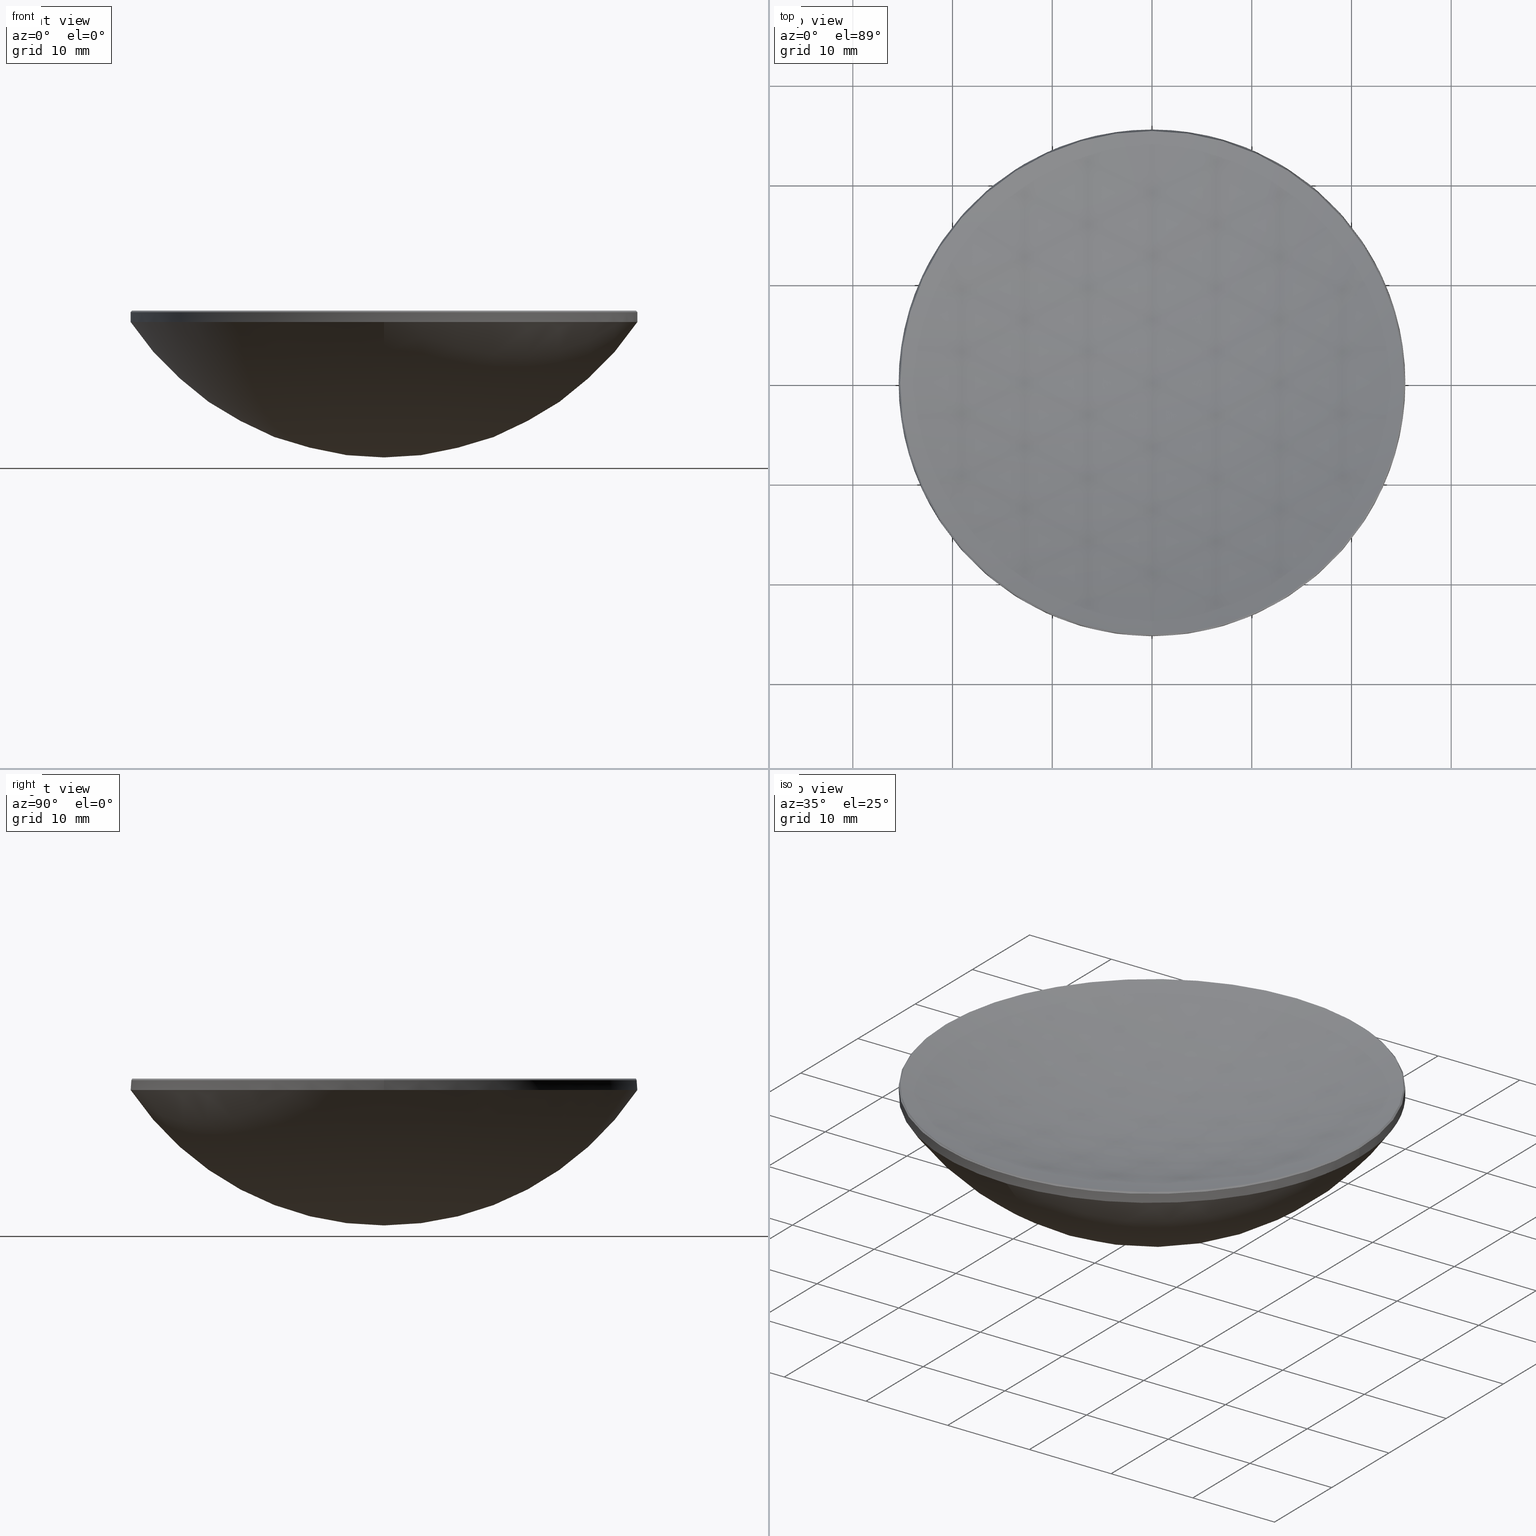
[diagram: canonical four-view strip — front | top / right | iso, engineering-drawing reading convention]
A machine part, canonical four-view strip (front | top / right | iso — engineering-drawing reading convention). The complete STEP part file that produces these views, byte-faithful:
ISO-10303-21;
HEADER;
FILE_DESCRIPTION (( 'STEP AP214' ),
    '1' );
FILE_NAME ('GLM2-050B-100.STEP',
    '2024-08-09T02:49:49',
    ( 'Windows User' ),
    ( 'P R C' ),
    'SwSTEP 2.0',
    'SolidWorks 2022',
    '' );
FILE_SCHEMA (( 'AUTOMOTIVE_DESIGN' ));
ENDSEC;

DATA;
#1 = CARTESIAN_POINT ( 'NONE',  ( 0.000000000000000000, 0.000000000000000000, 16.15044116531087681 ) ) ;
#2 = SURFACE_STYLE_USAGE ( .BOTH. , #201 ) ;
#3 = DIRECTION ( 'NONE',  ( -1.000000000000000000, 0.000000000000000000, 0.000000000000000000 ) ) ;
#4 = VECTOR ( 'NONE', #52, 999.9999999999998863 ) ;
#5 = FACE_OUTER_BOUND ( 'NONE', #82, .T. ) ;
#6 = SURFACE_STYLE_FILL_AREA ( #72 ) ;
#7 = ADVANCED_FACE ( 'NONE', ( #5 ), #224, .T. ) ;
#8 = EDGE_CURVE ( 'NONE', #102, #253, #270, .T. ) ;
#9 = ORIENTED_EDGE ( 'NONE', *, *, #100, .F. ) ;
#10 = AXIS2_PLACEMENT_3D ( 'NONE', #73, #66, #273 ) ;
#11 = DIRECTION ( 'NONE',  ( 0.7071067811864824026, 8.659560562354135369E-17, -0.7071067811866127428 ) ) ;
#12 = AXIS2_PLACEMENT_3D ( 'NONE', #30, #91, #246 ) ;
#13 = CARTESIAN_POINT ( 'NONE',  ( 0.000000000000000000, 0.000000000000000000, 93.05130838183561082 ) ) ;
#14 = UNCERTAINTY_MEASURE_WITH_UNIT (LENGTH_MEASURE( 1.000000000000000082E-05 ), #65, 'distance_accuracy_value', 'NONE');
#15 = AXIS2_PLACEMENT_3D ( 'NONE', #173, #119, #70 ) ;
#16 = UNCERTAINTY_MEASURE_WITH_UNIT (LENGTH_MEASURE( 1.000000000000000082E-05 ), #157, 'distance_accuracy_value', 'NONE');
#17 = ORIENTED_EDGE ( 'NONE', *, *, #8, .F. ) ;
#18 = EDGE_CURVE ( 'NONE', #126, #280, #57, .T. ) ;
#19 = CIRCLE ( 'NONE', #39, 30.55000000000000071 ) ;
#20 = VERTEX_POINT ( 'NONE', #47 ) ;
#21 = ORIENTED_EDGE ( 'NONE', *, *, #257, .T. ) ;
#22 = DIRECTION ( 'NONE',  ( 0.000000000000000000, 1.000000000000000000, 0.000000000000000000 ) ) ;
#23 =( GEOMETRIC_REPRESENTATION_CONTEXT ( 3 ) GLOBAL_UNCERTAINTY_ASSIGNED_CONTEXT ( ( #16 ) ) GLOBAL_UNIT_ASSIGNED_CONTEXT ( ( #157, #46, #268 ) ) REPRESENTATION_CONTEXT ( 'NONE', 'WORKASPACE' ) );
#24 = ORIENTED_EDGE ( 'NONE', *, *, #231, .F. ) ;
#25 = LINE ( 'NONE', #241, #213 ) ;
#26 = CARTESIAN_POINT ( 'NONE',  ( -3.092179140678477812E-15, -25.24955883468910045, 16.15044116531086260 ) ) ;
#27 = EDGE_CURVE ( 'NONE', #256, #20, #247, .T. ) ;
#28 = SHAPE_DEFINITION_REPRESENTATION ( #238, #78 ) ;
#29 = MECHANICAL_DESIGN_GEOMETRIC_PRESENTATION_REPRESENTATION (  '', ( #167 ), #112 ) ;
#30 = CARTESIAN_POINT ( 'NONE',  ( 0.000000000000000000, 0.000000000000000000, 20.00000000000000000 ) ) ;
#31 = ORIENTED_EDGE ( 'NONE', *, *, #277, .F. ) ;
#32 = SPHERICAL_SURFACE ( 'NONE', #87, 30.55000000000000071 ) ;
#33 = DIRECTION ( 'NONE',  ( 0.000000000000000000, 0.000000000000000000, -1.000000000000000000 ) ) ;
#34 = SPHERICAL_SURFACE ( 'NONE', #143, 80.93999999999998352 ) ;
#35 = CLOSED_SHELL ( 'NONE', ( #96, #74, #250, #7, #118, #123, #75, #210 ) ) ;
#36 = EDGE_LOOP ( 'NONE', ( #194, #84, #254, #171, #80 ) ) ;
#37 = VERTEX_POINT ( 'NONE', #111 ) ;
#38 = ORIENTED_EDGE ( 'NONE', *, *, #257, .F. ) ;
#39 = AXIS2_PLACEMENT_3D ( 'NONE', #222, #166, #242 ) ;
#40 = FACE_OUTER_BOUND ( 'NONE', #106, .T. ) ;
#41 = CARTESIAN_POINT ( 'NONE',  ( 0.000000000000000000, 0.000000000000000000, 15.00000000000000000 ) ) ;
#42 = DIRECTION ( 'NONE',  ( 0.000000000000000000, 1.000000000000000000, 0.000000000000000000 ) ) ;
#43 = EDGE_CURVE ( 'NONE', #20, #37, #220, .T. ) ;
#44 = DIRECTION ( 'NONE',  ( 1.000000000000000000, 0.000000000000000000, 0.000000000000000000 ) ) ;
#45 = APPLICATION_PROTOCOL_DEFINITION ( 'draft international standard', 'automotive_design', 1998, #255 ) ;
#46 =( NAMED_UNIT ( * ) PLANE_ANGLE_UNIT ( ) SI_UNIT ( $, .RADIAN. ) );
#47 = CARTESIAN_POINT ( 'NONE',  ( 25.39999999999999503, 3.110602869834276471E-15, 15.00000000000000000 ) ) ;
#48 = FILL_AREA_STYLE_COLOUR ( '', #192 ) ;
#49 = AXIS2_PLACEMENT_3D ( 'NONE', #51, #83, #198 ) ;
#50 = DIRECTION ( 'NONE',  ( 1.000000000000000000, 0.000000000000000000, 0.000000000000000000 ) ) ;
#51 = CARTESIAN_POINT ( 'NONE',  ( 0.000000000000000000, 0.000000000000000000, 20.00000000000000000 ) ) ;
#52 = DIRECTION ( 'NONE',  ( -0.7071067811864824026, 0.000000000000000000, -0.7071067811866127428 ) ) ;
#53 = DIRECTION ( 'NONE',  ( 1.000000000000000000, 0.000000000000000000, 0.000000000000000000 ) ) ;
#54 = PRODUCT_RELATED_PRODUCT_CATEGORY ( 'part', '', ( #196 ) ) ;
#55 = ORIENTED_EDGE ( 'NONE', *, *, #18, .F. ) ;
#56 = AXIS2_PLACEMENT_3D ( 'NONE', #86, #219, #230 ) ;
#57 = CIRCLE ( 'NONE', #71, 80.93999999999998352 ) ;
#58 = CIRCLE ( 'NONE', #135, 25.39999999999999503 ) ;
#59 = VERTEX_POINT ( 'NONE', #226 ) ;
#60 = UNCERTAINTY_MEASURE_WITH_UNIT (LENGTH_MEASURE( 1.000000000000000082E-05 ), #137, 'distance_accuracy_value', 'NONE');
#61 = ORIENTED_EDGE ( 'NONE', *, *, #231, .T. ) ;
#62 = CARTESIAN_POINT ( 'NONE',  ( 25.24955883468912532, 3.101391005256379311E-15, 16.15044116531086260 ) ) ;
#63 = EDGE_CURVE ( 'NONE', #253, #151, #282, .T. ) ;
#64 = DIRECTION ( 'NONE',  ( -1.000000000000000000, 0.000000000000000000, 0.000000000000000000 ) ) ;
#65 =( LENGTH_UNIT ( ) NAMED_UNIT ( * ) SI_UNIT ( .MILLI., .METRE. ) );
#66 = DIRECTION ( 'NONE',  ( 1.000000000000000000, -0.000000000000000000, 0.000000000000000000 ) ) ;
#67 = DIRECTION ( 'NONE',  ( -1.224646799147353207E-16, -1.000000000000000000, 0.000000000000000000 ) ) ;
#68 = AXIS2_PLACEMENT_3D ( 'NONE', #227, #92, #161 ) ;
#69 = ORIENTED_EDGE ( 'NONE', *, *, #8, .T. ) ;
#70 = DIRECTION ( 'NONE',  ( 0.000000000000000000, 0.000000000000000000, -1.000000000000000000 ) ) ;
#71 = AXIS2_PLACEMENT_3D ( 'NONE', #158, #202, #67 ) ;
#72 = FILL_AREA_STYLE ('',( #48 ) ) ;
#73 = CARTESIAN_POINT ( 'NONE',  ( 0.000000000000000000, 0.000000000000000000, 31.97476067577979819 ) ) ;
#74 = ADVANCED_FACE ( 'NONE', ( #40 ), #88, .T. ) ;
#75 = ADVANCED_FACE ( 'NONE', ( #104 ), #32, .T. ) ;
#76 = PRESENTATION_LAYER_ASSIGNMENT (  '', '', ( #167 ) ) ;
#77 = CIRCLE ( 'NONE', #153, 25.39999999999999503 ) ;
#78 = ADVANCED_BREP_SHAPE_REPRESENTATION ( 'GLM2-050B-100', ( #169, #68 ), #23 ) ;
#79 = PRESENTATION_LAYER_ASSIGNMENT (  '', '', ( #190 ) ) ;
#80 = ORIENTED_EDGE ( 'NONE', *, *, #156, .F. ) ;
#81 = ORIENTED_EDGE ( 'NONE', *, *, #258, .T. ) ;
#82 = EDGE_LOOP ( 'NONE', ( #61, #121, #125, #128, #240 ) ) ;
#83 = DIRECTION ( 'NONE',  ( -0.000000000000000000, -0.000000000000000000, -1.000000000000000000 ) ) ;
#84 = ORIENTED_EDGE ( 'NONE', *, *, #200, .F. ) ;
#85 = CARTESIAN_POINT ( 'NONE',  ( -25.24955883468912532, 0.000000000000000000, 16.15044116531086260 ) ) ;
#86 = CARTESIAN_POINT ( 'NONE',  ( 0.000000000000000000, 0.000000000000000000, 16.15044116531086260 ) ) ;
#87 = AXIS2_PLACEMENT_3D ( 'NONE', #262, #64, #42 ) ;
#88 = SPHERICAL_SURFACE ( 'NONE', #234, 30.55000000000000071 ) ;
#89 = COLOUR_RGB ( '',1.000000000000000000, 1.000000000000000000, 1.000000000000000000 ) ;
#90 = DIRECTION ( 'NONE',  ( -0.000000000000000000, -0.000000000000000000, 1.000000000000000000 ) ) ;
#91 = DIRECTION ( 'NONE',  ( -0.000000000000000000, -0.000000000000000000, -1.000000000000000000 ) ) ;
#92 = DIRECTION ( 'NONE',  ( 0.000000000000000000, 0.000000000000000000, 1.000000000000000000 ) ) ;
#93 = CIRCLE ( 'NONE', #10, 30.55000000000000071 ) ;
#94 = DIRECTION ( 'NONE',  ( 1.000000000000000000, 0.000000000000000000, 0.000000000000000000 ) ) ;
#95 = LINE ( 'NONE', #165, #148 ) ;
#96 = ADVANCED_FACE ( 'NONE', ( #205 ), #170, .T. ) ;
#97 = DIRECTION ( 'NONE',  ( 0.000000000000000000, 1.000000000000000000, 0.000000000000000000 ) ) ;
#98 = CIRCLE ( 'NONE', #15, 80.93999999999998352 ) ;
#99 = CIRCLE ( 'NONE', #264, 25.39999999999999858 ) ;
#100 = EDGE_CURVE ( 'NONE', #151, #59, #281, .T. ) ;
#101 =( GEOMETRIC_REPRESENTATION_CONTEXT ( 3 ) GLOBAL_UNCERTAINTY_ASSIGNED_CONTEXT ( ( #60 ) ) GLOBAL_UNIT_ASSIGNED_CONTEXT ( ( #137, #184, #133 ) ) REPRESENTATION_CONTEXT ( 'NONE', 'WORKASPACE' ) );
#102 = VERTEX_POINT ( 'NONE', #62 ) ;
#103 = ORIENTED_EDGE ( 'NONE', *, *, #156, .T. ) ;
#104 = FACE_OUTER_BOUND ( 'NONE', #189, .T. ) ;
#105 = ORIENTED_EDGE ( 'NONE', *, *, #43, .F. ) ;
#106 = EDGE_LOOP ( 'NONE', ( #215, #21, #31, #236 ) ) ;
#107 = CARTESIAN_POINT ( 'NONE',  ( 0.000000000000000000, 0.000000000000000000, 31.97476067577979819 ) ) ;
#108 = FACE_OUTER_BOUND ( 'NONE', #36, .T. ) ;
#109 = FILL_AREA_STYLE ('',( #175 ) ) ;
#110 = CARTESIAN_POINT ( 'NONE',  ( 0.000000000000000000, 0.000000000000000000, 15.00000000000000000 ) ) ;
#111 = CARTESIAN_POINT ( 'NONE',  ( 0.000000000000000000, 25.39999999999999858, 15.00000000000000178 ) ) ;
#112 =( GEOMETRIC_REPRESENTATION_CONTEXT ( 3 ) GLOBAL_UNCERTAINTY_ASSIGNED_CONTEXT ( ( #14 ) ) GLOBAL_UNIT_ASSIGNED_CONTEXT ( ( #65, #142, #144 ) ) REPRESENTATION_CONTEXT ( 'NONE', 'WORKASPACE' ) );
#113 = VERTEX_POINT ( 'NONE', #249 ) ;
#114 = CARTESIAN_POINT ( 'NONE',  ( 0.000000000000000000, 0.000000000000000000, 16.15044116531086260 ) ) ;
#115 = SURFACE_STYLE_USAGE ( .BOTH. , #160 ) ;
#116 = DIRECTION ( 'NONE',  ( -0.000000000000000000, -0.000000000000000000, -1.000000000000000000 ) ) ;
#117 = AXIS2_PLACEMENT_3D ( 'NONE', #263, #130, #207 ) ;
#118 = ADVANCED_FACE ( 'NONE', ( #180 ), #141, .T. ) ;
#119 = DIRECTION ( 'NONE',  ( 1.000000000000000000, 0.000000000000000000, 0.000000000000000000 ) ) ;
#120 = AXIS2_PLACEMENT_3D ( 'NONE', #267, #90, #50 ) ;
#121 = ORIENTED_EDGE ( 'NONE', *, *, #27, .T. ) ;
#122 = EDGE_CURVE ( 'NONE', #126, #253, #98, .T. ) ;
#123 = ADVANCED_FACE ( 'NONE', ( #248 ), #131, .F. ) ;
#124 = AXIS2_PLACEMENT_3D ( 'NONE', #243, #33, #94 ) ;
#125 = ORIENTED_EDGE ( 'NONE', *, *, #43, .T. ) ;
#126 = VERTEX_POINT ( 'NONE', #139 ) ;
#127 = CIRCLE ( 'NONE', #206, 25.39999999999999503 ) ;
#128 = ORIENTED_EDGE ( 'NONE', *, *, #188, .T. ) ;
#129 = CARTESIAN_POINT ( 'NONE',  ( 0.000000000000000000, 1.870647985697581912E-15, 1.424760675779797259 ) ) ;
#130 = DIRECTION ( 'NONE',  ( -0.000000000000000000, -0.000000000000000000, 1.000000000000000000 ) ) ;
#131 = SPHERICAL_SURFACE ( 'NONE', #225, 80.93999999999998352 ) ;
#132 = DIRECTION ( 'NONE',  ( 1.000000000000000000, 0.000000000000000000, 0.000000000000000000 ) ) ;
#133 =( NAMED_UNIT ( * ) SI_UNIT ( $, .STERADIAN. ) SOLID_ANGLE_UNIT ( ) );
#134 = DIRECTION ( 'NONE',  ( -0.000000000000000000, -0.000000000000000000, -1.000000000000000000 ) ) ;
#135 = AXIS2_PLACEMENT_3D ( 'NONE', #110, #140, #53 ) ;
#136 = DIRECTION ( 'NONE',  ( 1.000000000000000000, 0.000000000000000000, 0.000000000000000000 ) ) ;
#137 =( LENGTH_UNIT ( ) NAMED_UNIT ( * ) SI_UNIT ( .MILLI., .METRE. ) );
#138 = PRODUCT_CONTEXT ( 'NONE', #255, 'mechanical' ) ;
#139 = CARTESIAN_POINT ( 'NONE',  ( 0.000000000000000000, 4.956145596149337094E-15, 12.11130838183563441 ) ) ;
#140 = DIRECTION ( 'NONE',  ( -0.000000000000000000, -0.000000000000000000, 1.000000000000000000 ) ) ;
#141 = CYLINDRICAL_SURFACE ( 'NONE', #49, 25.39999999999999858 ) ;
#142 =( NAMED_UNIT ( * ) PLANE_ANGLE_UNIT ( ) SI_UNIT ( $, .RADIAN. ) );
#143 = AXIS2_PLACEMENT_3D ( 'NONE', #13, #199, #97 ) ;
#144 =( NAMED_UNIT ( * ) SI_UNIT ( $, .STERADIAN. ) SOLID_ANGLE_UNIT ( ) );
#145 = VERTEX_POINT ( 'NONE', #228 ) ;
#146 = AXIS2_PLACEMENT_3D ( 'NONE', #266, #204, #136 ) ;
#147 = EDGE_CURVE ( 'NONE', #102, #256, #25, .T. ) ;
#148 = VECTOR ( 'NONE', #116, 1000.000000000000000 ) ;
#149 = ORIENTED_EDGE ( 'NONE', *, *, #122, .T. ) ;
#150 = ORIENTED_EDGE ( 'NONE', *, *, #178, .T. ) ;
#151 = VERTEX_POINT ( 'NONE', #85 ) ;
#152 = DIRECTION ( 'NONE',  ( 0.000000000000000000, 1.000000000000000000, 0.000000000000000000 ) ) ;
#153 = AXIS2_PLACEMENT_3D ( 'NONE', #41, #181, #132 ) ;
#154 = CARTESIAN_POINT ( 'NONE',  ( -25.24955883468912177, 0.000000000000000000, 16.15044116531087681 ) ) ;
#155 = DIRECTION ( 'NONE',  ( 1.000000000000000000, 0.000000000000000000, 0.000000000000000000 ) ) ;
#156 = EDGE_CURVE ( 'NONE', #256, #59, #214, .T. ) ;
#157 =( LENGTH_UNIT ( ) NAMED_UNIT ( * ) SI_UNIT ( .MILLI., .METRE. ) );
#158 = CARTESIAN_POINT ( 'NONE',  ( 0.000000000000000000, 0.000000000000000000, 93.05130838183561082 ) ) ;
#159 = VERTEX_POINT ( 'NONE', #129 ) ;
#160 = SURFACE_SIDE_STYLE ('',( #6 ) ) ;
#161 = DIRECTION ( 'NONE',  ( 1.000000000000000000, 0.000000000000000000, 0.000000000000000000 ) ) ;
#162 = CARTESIAN_POINT ( 'NONE',  ( 0.000000000000000000, 0.000000000000000000, 93.05130838183561082 ) ) ;
#163 = AXIS2_PLACEMENT_3D ( 'NONE', #114, #221, #216 ) ;
#164 = PRESENTATION_STYLE_ASSIGNMENT (( #115 ) ) ;
#165 = CARTESIAN_POINT ( 'NONE',  ( -25.39999999999999858, 0.000000000000000000, 20.00000000000000000 ) ) ;
#166 = DIRECTION ( 'NONE',  ( -1.000000000000000000, 1.224646799147353207E-16, 0.000000000000000000 ) ) ;
#167 = STYLED_ITEM ( 'NONE', ( #269 ), #169 ) ;
#168 = ORIENTED_EDGE ( 'NONE', *, *, #211, .T. ) ;
#169 = MANIFOLD_SOLID_BREP ( '����1', #35 ) ;
#170 = CONICAL_SURFACE ( 'NONE', #203, 25.24955883468912177, 0.7853981633973560195 ) ;
#171 = ORIENTED_EDGE ( 'NONE', *, *, #100, .T. ) ;
#172 = ORIENTED_EDGE ( 'NONE', *, *, #147, .T. ) ;
#173 = CARTESIAN_POINT ( 'NONE',  ( 0.000000000000000000, 0.000000000000000000, 93.05130838183561082 ) ) ;
#174 = ORIENTED_EDGE ( 'NONE', *, *, #122, .F. ) ;
#175 = FILL_AREA_STYLE_COLOUR ( '', #89 ) ;
#176 = DIRECTION ( 'NONE',  ( 0.000000000000000000, 0.000000000000000000, -1.000000000000000000 ) ) ;
#177 = CIRCLE ( 'NONE', #117, 25.24955883468912532 ) ;
#178 = EDGE_CURVE ( 'NONE', #59, #113, #95, .T. ) ;
#179 = PRODUCT_DEFINITION ( 'δ֪', '', #245, #237 ) ;
#180 = FACE_OUTER_BOUND ( 'NONE', #193, .T. ) ;
#181 = DIRECTION ( 'NONE',  ( -0.000000000000000000, -0.000000000000000000, 1.000000000000000000 ) ) ;
#182 = ORIENTED_EDGE ( 'NONE', *, *, #235, .T. ) ;
#183 = CARTESIAN_POINT ( 'NONE',  ( 25.39999999999999858, 3.110602869834276865E-15, 20.00000000000000000 ) ) ;
#184 =( NAMED_UNIT ( * ) PLANE_ANGLE_UNIT ( ) SI_UNIT ( $, .RADIAN. ) );
#185 = SURFACE_STYLE_FILL_AREA ( #109 ) ;
#186 = DIRECTION ( 'NONE',  ( 0.000000000000000000, 0.000000000000000000, -1.000000000000000000 ) ) ;
#187 = CARTESIAN_POINT ( 'NONE',  ( 0.000000000000000000, 25.24955883468910045, 16.15044116531086260 ) ) ;
#188 = EDGE_CURVE ( 'NONE', #37, #113, #58, .T. ) ;
#189 = EDGE_LOOP ( 'NONE', ( #38, #182, #105, #275 ) ) ;
#190 = STYLED_ITEM ( 'NONE', ( #164 ), #78 ) ;
#191 = EDGE_LOOP ( 'NONE', ( #174, #259, #217, #69 ) ) ;
#192 = COLOUR_RGB ( '',1.000000000000000000, 1.000000000000000000, 1.000000000000000000 ) ;
#193 = EDGE_LOOP ( 'NONE', ( #233, #103, #150, #278, #81 ) ) ;
#194 = ORIENTED_EDGE ( 'NONE', *, *, #147, .F. ) ;
#195 = CARTESIAN_POINT ( 'NONE',  ( 0.000000000000000000, 0.000000000000000000, 16.15044116531087681 ) ) ;
#196 = PRODUCT ( 'GLM2-050B-100', 'GLM2-050B-100', '', ( #138 ) ) ;
#197 = VECTOR ( 'NONE', #134, 1000.000000000000000 ) ;
#198 = DIRECTION ( 'NONE',  ( -1.000000000000000000, 0.000000000000000000, 0.000000000000000000 ) ) ;
#199 = DIRECTION ( 'NONE',  ( -1.000000000000000000, 0.000000000000000000, 0.000000000000000000 ) ) ;
#200 = EDGE_CURVE ( 'NONE', #280, #102, #177, .T. ) ;
#201 = SURFACE_SIDE_STYLE ('',( #185 ) ) ;
#202 = DIRECTION ( 'NONE',  ( -1.000000000000000000, 1.224646799147353207E-16, 0.000000000000000000 ) ) ;
#203 = AXIS2_PLACEMENT_3D ( 'NONE', #195, #208, #265 ) ;
#204 = DIRECTION ( 'NONE',  ( -0.000000000000000000, -0.000000000000000000, 1.000000000000000000 ) ) ;
#205 = FACE_OUTER_BOUND ( 'NONE', #239, .T. ) ;
#206 = AXIS2_PLACEMENT_3D ( 'NONE', #251, #244, #44 ) ;
#207 = DIRECTION ( 'NONE',  ( 1.000000000000000000, 0.000000000000000000, 0.000000000000000000 ) ) ;
#208 = DIRECTION ( 'NONE',  ( 0.000000000000000000, 0.000000000000000000, -1.000000000000000000 ) ) ;
#209 = FACE_OUTER_BOUND ( 'NONE', #191, .T. ) ;
#210 = ADVANCED_FACE ( 'NONE', ( #108 ), #229, .T. ) ;
#211 = EDGE_CURVE ( 'NONE', #151, #280, #252, .T. ) ;
#212 = MECHANICAL_DESIGN_GEOMETRIC_PRESENTATION_REPRESENTATION (  '', ( #190 ), #101 ) ;
#213 = VECTOR ( 'NONE', #11, 999.9999999999998863 ) ;
#214 = CIRCLE ( 'NONE', #124, 25.39999999999999858 ) ;
#215 = ORIENTED_EDGE ( 'NONE', *, *, #235, .F. ) ;
#216 = DIRECTION ( 'NONE',  ( 1.000000000000000000, 0.000000000000000000, 0.000000000000000000 ) ) ;
#217 = ORIENTED_EDGE ( 'NONE', *, *, #200, .T. ) ;
#218 = DIRECTION ( 'NONE',  ( -1.000000000000000000, 0.000000000000000000, 0.000000000000000000 ) ) ;
#219 = DIRECTION ( 'NONE',  ( -0.000000000000000000, -0.000000000000000000, 1.000000000000000000 ) ) ;
#220 = CIRCLE ( 'NONE', #120, 25.39999999999999503 ) ;
#221 = DIRECTION ( 'NONE',  ( -0.000000000000000000, -0.000000000000000000, 1.000000000000000000 ) ) ;
#222 = CARTESIAN_POINT ( 'NONE',  ( 0.000000000000000000, 0.000000000000000000, 31.97476067577979819 ) ) ;
#223 = APPLICATION_PROTOCOL_DEFINITION ( 'draft international standard', 'automotive_design', 1998, #272 ) ;
#224 = CYLINDRICAL_SURFACE ( 'NONE', #12, 25.39999999999999858 ) ;
#225 = AXIS2_PLACEMENT_3D ( 'NONE', #162, #261, #152 ) ;
#226 = CARTESIAN_POINT ( 'NONE',  ( -25.39999999999999858, 0.000000000000000000, 15.99999999999997335 ) ) ;
#227 = CARTESIAN_POINT ( 'NONE',  ( 0.000000000000000000, 0.000000000000000000, 0.000000000000000000 ) ) ;
#228 = CARTESIAN_POINT ( 'NONE',  ( -3.110602869834276471E-15, -25.39999999999999858, 15.00000000000000178 ) ) ;
#229 = CONICAL_SURFACE ( 'NONE', #274, 25.24955883468912177, 0.7853981633973560195 ) ;
#230 = DIRECTION ( 'NONE',  ( 1.000000000000000000, 0.000000000000000000, 0.000000000000000000 ) ) ;
#231 = EDGE_CURVE ( 'NONE', #59, #256, #99, .T. ) ;
#232 = CARTESIAN_POINT ( 'NONE',  ( 0.000000000000000000, 0.000000000000000000, 15.99999999999997335 ) ) ;
#233 = ORIENTED_EDGE ( 'NONE', *, *, #27, .F. ) ;
#234 = AXIS2_PLACEMENT_3D ( 'NONE', #107, #218, #22 ) ;
#235 = EDGE_CURVE ( 'NONE', #159, #37, #93, .T. ) ;
#236 = ORIENTED_EDGE ( 'NONE', *, *, #188, .F. ) ;
#237 = PRODUCT_DEFINITION_CONTEXT ( 'detailed design', #272, 'design' ) ;
#238 = PRODUCT_DEFINITION_SHAPE ( 'NONE', 'NONE',  #179 ) ;
#239 = EDGE_LOOP ( 'NONE', ( #17, #172, #24, #9, #279 ) ) ;
#240 = ORIENTED_EDGE ( 'NONE', *, *, #178, .F. ) ;
#241 = CARTESIAN_POINT ( 'NONE',  ( 25.24955883468912177, 3.092179140678480573E-15, 16.15044116531087681 ) ) ;
#242 = DIRECTION ( 'NONE',  ( -1.224646799147353207E-16, -1.000000000000000000, 0.000000000000000000 ) ) ;
#243 = CARTESIAN_POINT ( 'NONE',  ( 0.000000000000000000, 0.000000000000000000, 15.99999999999997335 ) ) ;
#244 = DIRECTION ( 'NONE',  ( -0.000000000000000000, -0.000000000000000000, 1.000000000000000000 ) ) ;
#245 = PRODUCT_DEFINITION_FORMATION_WITH_SPECIFIED_SOURCE ( '�κ�', '', #196, .NOT_KNOWN. ) ;
#246 = DIRECTION ( 'NONE',  ( -1.000000000000000000, 0.000000000000000000, 0.000000000000000000 ) ) ;
#247 = LINE ( 'NONE', #183, #197 ) ;
#248 = FACE_OUTER_BOUND ( 'NONE', #260, .T. ) ;
#249 = CARTESIAN_POINT ( 'NONE',  ( -25.39999999999999503, 0.000000000000000000, 15.00000000000000000 ) ) ;
#250 = ADVANCED_FACE ( 'NONE', ( #209 ), #34, .F. ) ;
#251 = CARTESIAN_POINT ( 'NONE',  ( 0.000000000000000000, 0.000000000000000000, 15.00000000000000000 ) ) ;
#252 = CIRCLE ( 'NONE', #56, 25.24955883468912532 ) ;
#253 = VERTEX_POINT ( 'NONE', #187 ) ;
#254 = ORIENTED_EDGE ( 'NONE', *, *, #211, .F. ) ;
#255 = APPLICATION_CONTEXT ( 'automotive_design' ) ;
#256 = VERTEX_POINT ( 'NONE', #271 ) ;
#257 = EDGE_CURVE ( 'NONE', #159, #145, #19, .T. ) ;
#258 = EDGE_CURVE ( 'NONE', #145, #20, #127, .T. ) ;
#259 = ORIENTED_EDGE ( 'NONE', *, *, #18, .T. ) ;
#260 = EDGE_LOOP ( 'NONE', ( #55, #149, #276, #168 ) ) ;
#261 = DIRECTION ( 'NONE',  ( -1.000000000000000000, 0.000000000000000000, 0.000000000000000000 ) ) ;
#262 = CARTESIAN_POINT ( 'NONE',  ( 0.000000000000000000, 0.000000000000000000, 31.97476067577979819 ) ) ;
#263 = CARTESIAN_POINT ( 'NONE',  ( 0.000000000000000000, 0.000000000000000000, 16.15044116531086260 ) ) ;
#264 = AXIS2_PLACEMENT_3D ( 'NONE', #232, #176, #155 ) ;
#265 = DIRECTION ( 'NONE',  ( -1.000000000000000000, 0.000000000000000000, 0.000000000000000000 ) ) ;
#266 = CARTESIAN_POINT ( 'NONE',  ( 0.000000000000000000, 0.000000000000000000, 16.15044116531086260 ) ) ;
#267 = CARTESIAN_POINT ( 'NONE',  ( 0.000000000000000000, 0.000000000000000000, 15.00000000000000000 ) ) ;
#268 =( NAMED_UNIT ( * ) SI_UNIT ( $, .STERADIAN. ) SOLID_ANGLE_UNIT ( ) );
#269 = PRESENTATION_STYLE_ASSIGNMENT (( #2 ) ) ;
#270 = CIRCLE ( 'NONE', #146, 25.24955883468912532 ) ;
#271 = CARTESIAN_POINT ( 'NONE',  ( 25.39999999999999858, 3.110602869834276865E-15, 15.99999999999997335 ) ) ;
#272 = APPLICATION_CONTEXT ( 'automotive_design' ) ;
#273 = DIRECTION ( 'NONE',  ( 0.000000000000000000, 0.000000000000000000, -1.000000000000000000 ) ) ;
#274 = AXIS2_PLACEMENT_3D ( 'NONE', #1, #186, #3 ) ;
#275 = ORIENTED_EDGE ( 'NONE', *, *, #258, .F. ) ;
#276 = ORIENTED_EDGE ( 'NONE', *, *, #63, .T. ) ;
#277 = EDGE_CURVE ( 'NONE', #113, #145, #77, .T. ) ;
#278 = ORIENTED_EDGE ( 'NONE', *, *, #277, .T. ) ;
#279 = ORIENTED_EDGE ( 'NONE', *, *, #63, .F. ) ;
#280 = VERTEX_POINT ( 'NONE', #26 ) ;
#281 = LINE ( 'NONE', #154, #4 ) ;
#282 = CIRCLE ( 'NONE', #163, 25.24955883468912532 ) ;
ENDSEC;
END-ISO-10303-21;
